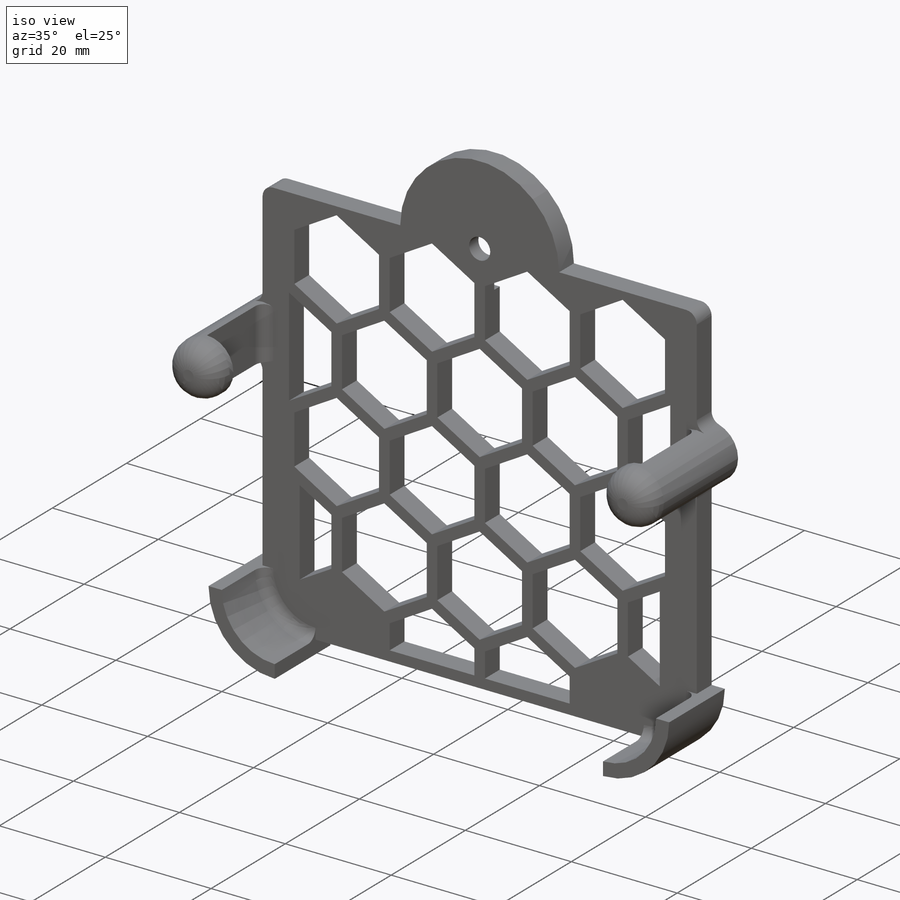
[diagram: iso view]
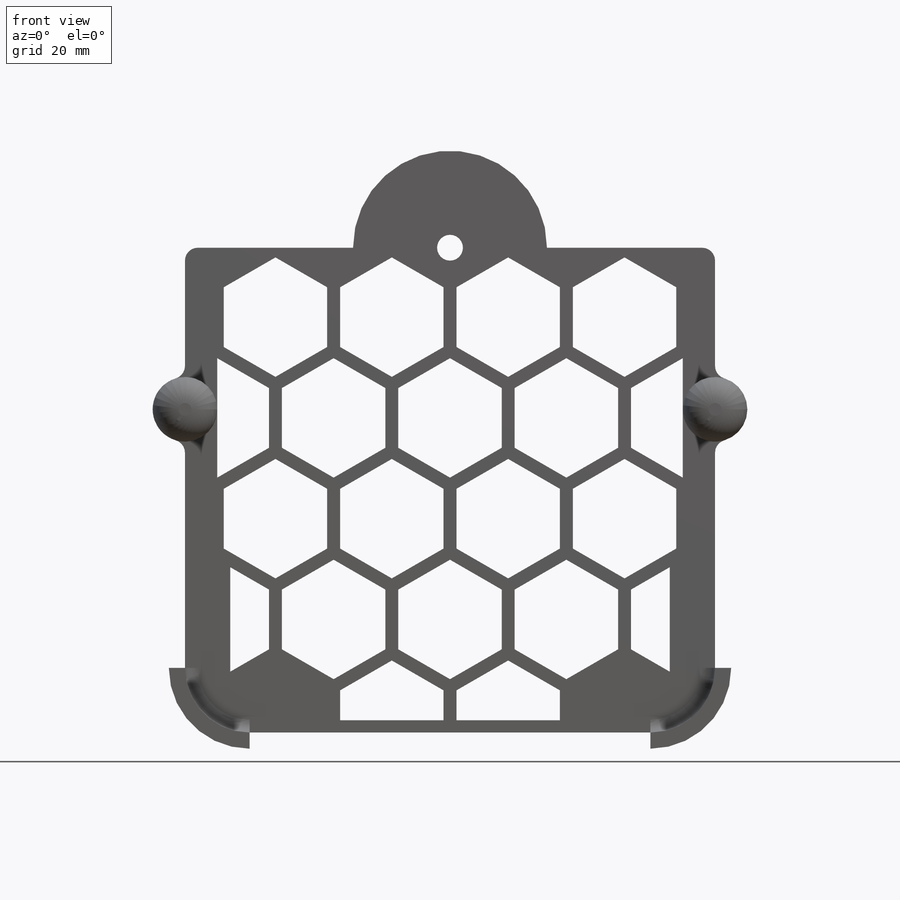
[diagram: front view]
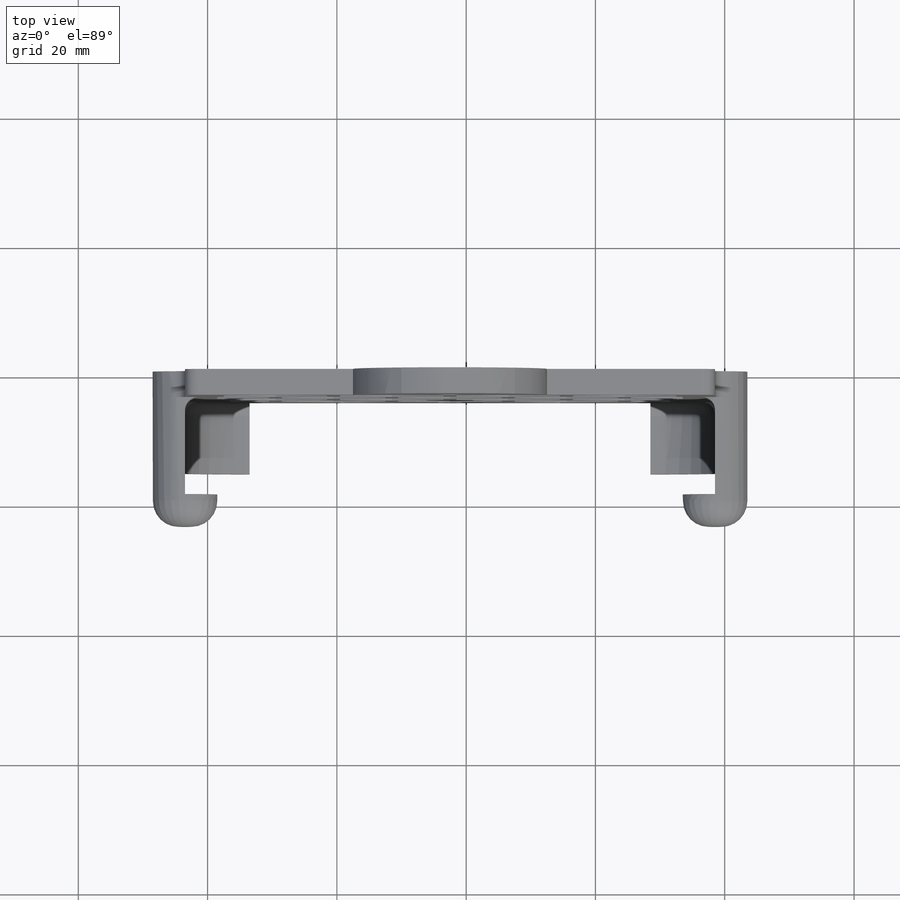
[diagram: top view]
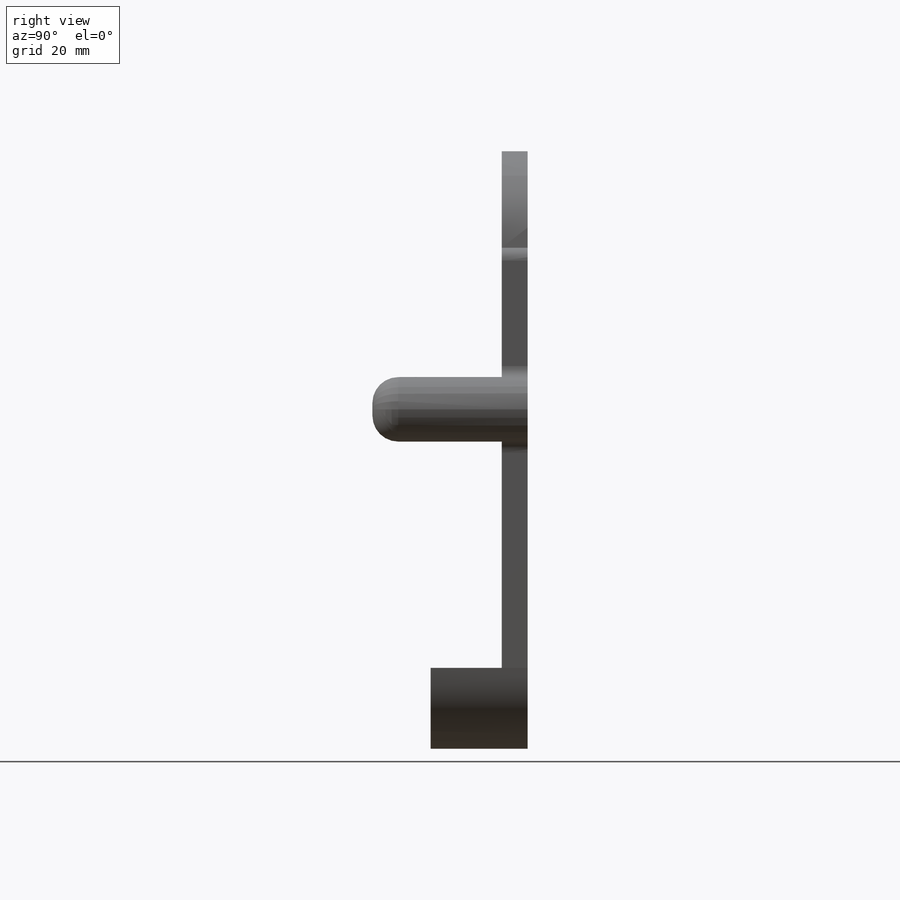
[diagram: right view]
SOLIDWORKS PART (.sldprt)
format: sldprt  version: not decoded by parser v0  size: 721,920 bytes
history: native  units: mm
features: sketch x9, extrude x4, fillet x4, plane x3, cut_extrude x3, material x1, hole x1 (+13 scaffold rows collapsed)
feature tree (38):
  scaffold x13  (default folders/planes/origin — collapsed)
  material  "Material <not specified>"
  sketch  "Sketch1"  dims[c1.D5=10.0mm c1.D7=10.0mm c1.D8=1.99mm c1.D9=~8.376531mm c2.D7=10.0mm c2.D1=75.0mm c2.D2=150.0mm c2.D3=26.0mm c2.D4=26.0mm c2.D5=15.0mm c2.D6=0.0mm c3.D5=50.0mm c3.D6=50.0mm c3.D7=15.0mm c3.D2=75.0mm c4.D7=2.0mm c4.D9=41.0mm c4.D10=41.0mm c4.D11=0.0mm c5.D7=0.0mm c5.D1=2.5mm c5.D11=2.5mm c5.D12=2.5mm]
  extrude  "Base"  Depth=4mm
  extrude  "Phone Posts"  [1 undecoded]
  sketch  "Sketch1<3>"  dims[D1=24.0mm]
  extrude  "Bottom Phone Retainer"  [1 undecoded]
  sketch  "Sketch1<4>"  dims[D1=9.5mm]
  plane  "Plane1"  Offset=0mm
  sketch  "Sketch2"  dims[c1.D1=15.0mm c1.D2=75.0mm c2.D1=41.0mm c2.D2=41.0mm]
  cut_extrude  "Phone Slot"  Depth=86mm
  fillet  "Fillet1"  Radius=4mm
  fillet  "Fillet3"  Radius=2mm
  fillet  "Fillet5"  Radius=2mm
  plane  "Plane2"  Offset=0mm
  sketch  "Honey Comb Retainer"  dims[D3=7.6mm D1=15.0mm D2=15.0mm]
  plane  "Plane3"  Offset=0mm
  sketch  "Sketch5"  dims[c1.D6=~69.637731mm c1.D3=9.0mm c1.D5=6.0mm c1.D7=7.0mm c1.D1=75.0mm c1.D2=37.5mm c2.D3=10.0mm c2.D4=10.0mm c2.D5=5.0mm c2.D6=37.5mm c2.D7=37.5mm c2.D1=1.5mm c2.D2=1.5mm c3.D1=1.5mm c3.D2=2.5mm c3.D4=18.0mm c3.D6=18.0mm c3.D8=18.0mm c3.D10=18.0mm c3.D12=18.0mm c3.D14=18.0mm c3.D16=18.0mm c3.D18=18.0mm c3.D20=18.0mm c3.D21=3.5mm c3.D22=7.0mm c3.D23=~16.165808mm c4.D21=7.0mm c4.D23=6.0mm c4.D3=5.0 c4.D5=4.0 c4.D7=4.0 c4.D9=3.0 c4.D11=3.0 c4.D13=2.0 c4.D15=2.0 c4.D17=2.0 c4.D19=3.0]
  cut_extrude  "Cut-Extrude4"  [1 undecoded]
  cut_extrude  "Cut-Extrude5"  Depth=1.5mm
  hole  "Ø4.0mm Dowel Slot1"  Diameter=4mm Depth=3.3mm
  sketch  "Sketch10"  dims[D1=15.0mm]
  sketch  "Sketch8"  dims[hole-wizard template sketch: 47 standard entries collapsed; hole parameters kept: c15.Hole Depth=3.3mm c15.D3=~14.816244mm c15.Drill Angle=118.0deg]
  extrude  "Boss-Extrude1"  [1 undecoded]
  sketch  "Sketch1<5>"  dims[D1=15.0mm]
  fillet  "Fillet6"  Radius=2mm
decode coverage: 17 of 21 modeling features carry decoded parameters
note: ~ marks probable driven/reference dimensions
note: 4 parameter values undecoded
summary: no parameter record found for 4 features
note: suppression state not decoded; provenance and decode notes live in map.json
